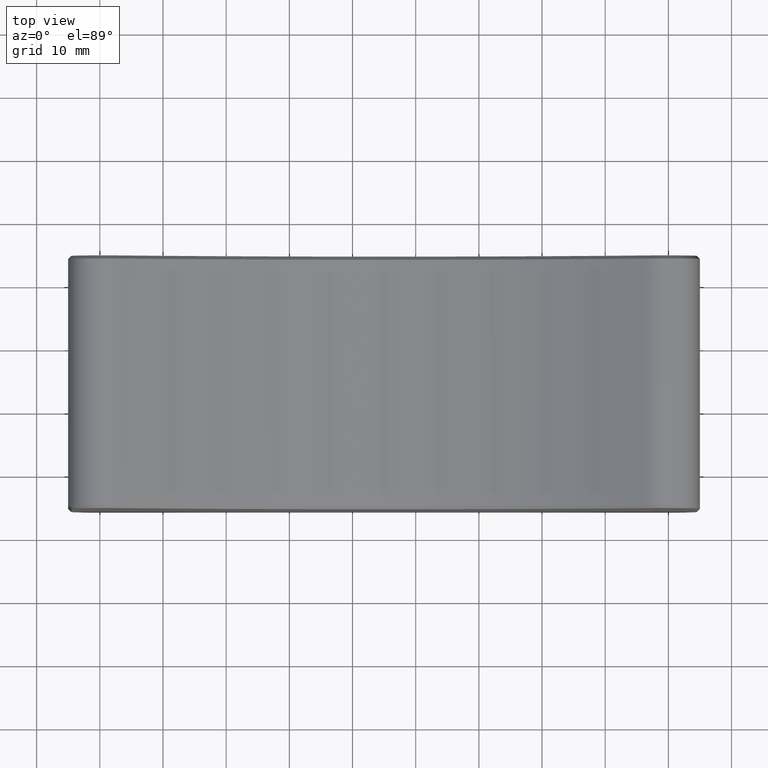
[diagram: clean part render]
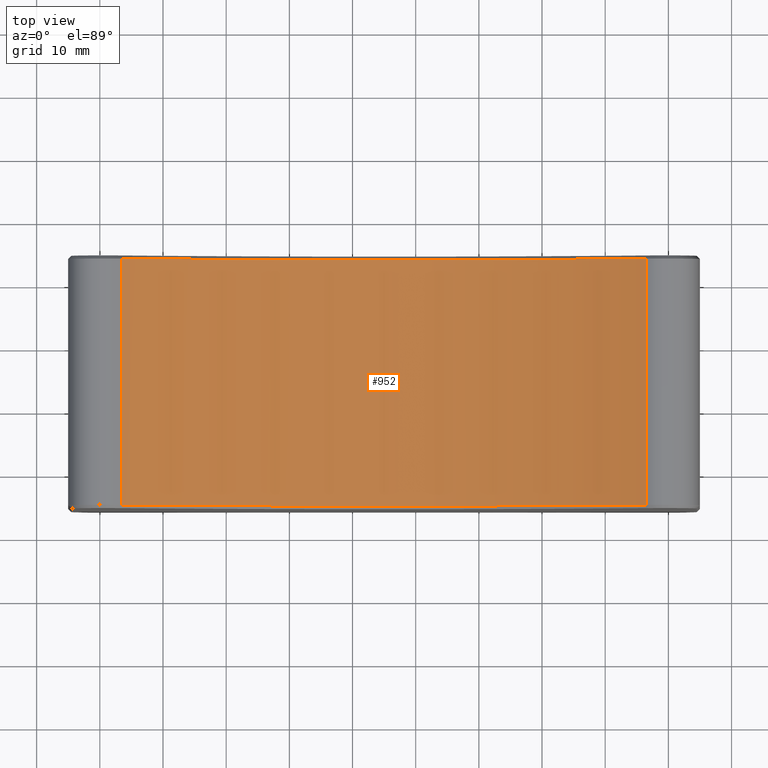
[diagram: same view with one face highlighted and labeled with its STEP entity id]
A machine part, top view. The second image highlights one B-rep face of the part: STEP entity #952.
In plain terms, the highlighted cylindrical surface (partial cylindrical patch) has radius 85 mm, axis along (0, 1, 0).
Its self-contained STEP definition (entity closure, byte-faithful):
#124=FACE_OUTER_BOUND('',#191,.T.);
#191=EDGE_LOOP('',(#846,#847,#848,#849));
#257=LINE('',#1718,#323);
#258=LINE('',#1722,#324);
#323=VECTOR('',#1425,39.00000000131);
#324=VECTOR('',#1430,39.00000000132);
#387=CIRCLE('',#1089,85.);
#401=CIRCLE('',#1119,85.);
#460=VERTEX_POINT('',#1640);
#461=VERTEX_POINT('',#1644);
#482=VERTEX_POINT('',#1716);
#483=VERTEX_POINT('',#1720);
#570=EDGE_CURVE('',#460,#461,#387,.T.);
#607=EDGE_CURVE('',#482,#460,#257,.T.);
#608=EDGE_CURVE('',#483,#482,#401,.T.);
#609=EDGE_CURVE('',#461,#483,#258,.T.);
#846=ORIENTED_EDGE('',*,*,#570,.F.);
#847=ORIENTED_EDGE('',*,*,#607,.F.);
#848=ORIENTED_EDGE('',*,*,#608,.F.);
#849=ORIENTED_EDGE('',*,*,#609,.F.);
#900=CYLINDRICAL_SURFACE('',#1118,85.);
#952=ADVANCED_FACE('',(#124),#900,.F.);
#1089=AXIS2_PLACEMENT_3D('',#1645,#1344,#1345);
#1118=AXIS2_PLACEMENT_3D('',#1719,#1426,#1427);
#1119=AXIS2_PLACEMENT_3D('',#1721,#1428,#1429);
#1344=DIRECTION('center_axis',(0.,-1.,0.));
#1345=DIRECTION('ref_axis',(-0.48910979857462,0.,-0.872222222222235));
#1425=DIRECTION('',(0.,1.,0.));
#1426=DIRECTION('center_axis',(0.,1.,0.));
#1427=DIRECTION('ref_axis',(1.,0.,0.));
#1428=DIRECTION('center_axis',(0.,1.,0.));
#1429=DIRECTION('ref_axis',(0.48910979857462,0.,-0.872222222222235));
#1430=DIRECTION('',(0.,-1.,0.));
#1640=CARTESIAN_POINT('',(-41.5743328738991,39.5000000000322,25.8611111081207));
#1644=CARTESIAN_POINT('',(41.5743328729977,39.5000000000313,25.8611111076138));
#1645=CARTESIAN_POINT('Origin',(0.,39.5,100.));
#1716=CARTESIAN_POINT('',(-41.5743328738992,0.499999999968403,25.8611111081204));
#1718=CARTESIAN_POINT('',(-41.57433287341,0.4999999993434,25.86111110731));
#1719=CARTESIAN_POINT('Origin',(0.,40.,100.));
#1720=CARTESIAN_POINT('',(41.5743328729976,0.499999999968422,25.861111107614));
#1721=CARTESIAN_POINT('Origin',(0.,0.5000000000001,100.));
#1722=CARTESIAN_POINT('',(41.57433287238,39.50000000066,25.86111110673));